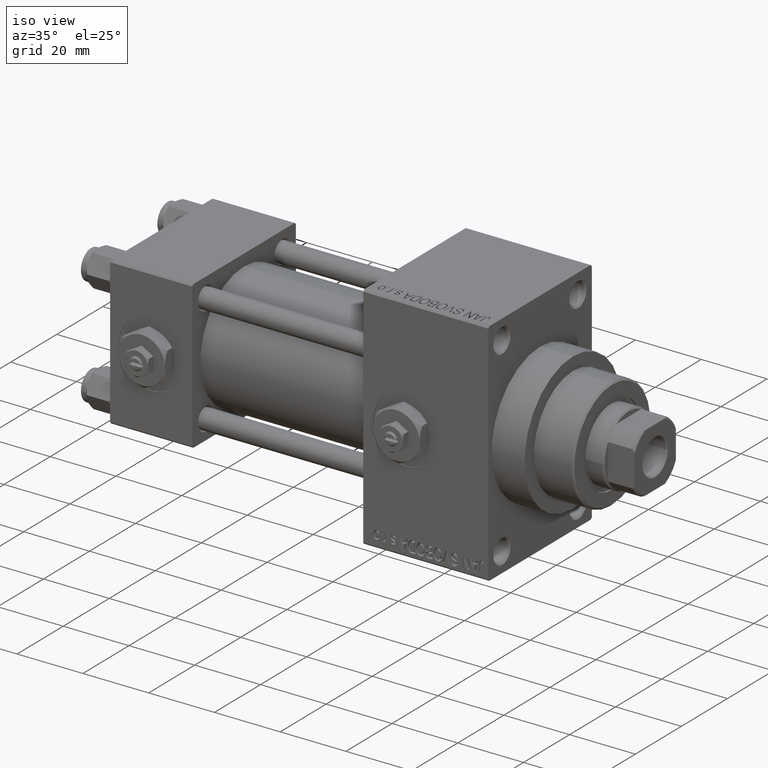
[diagram: clean part render]
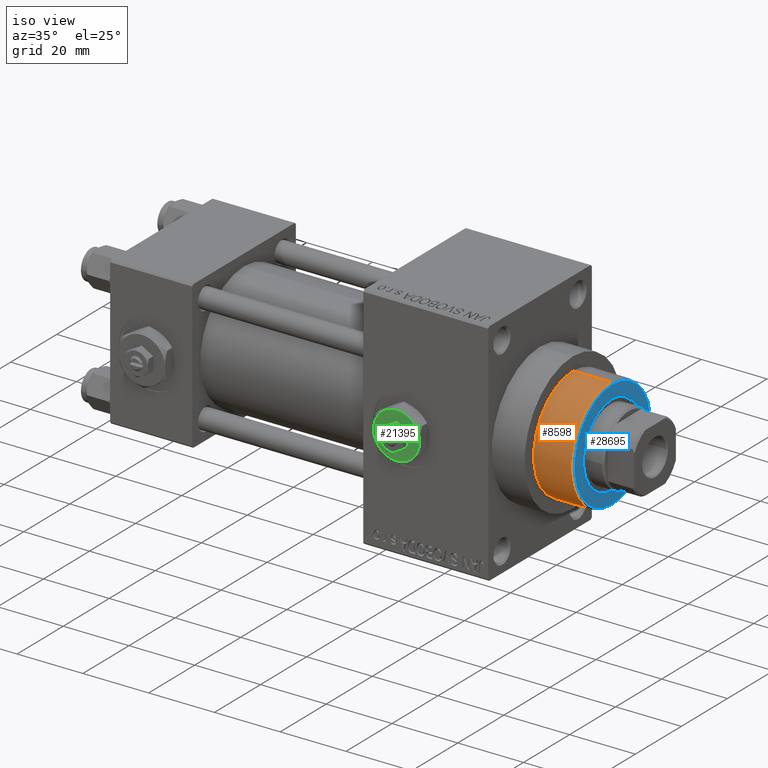
[diagram: same view with three faces highlighted in distinct colors, each labeled with its STEP entity id]
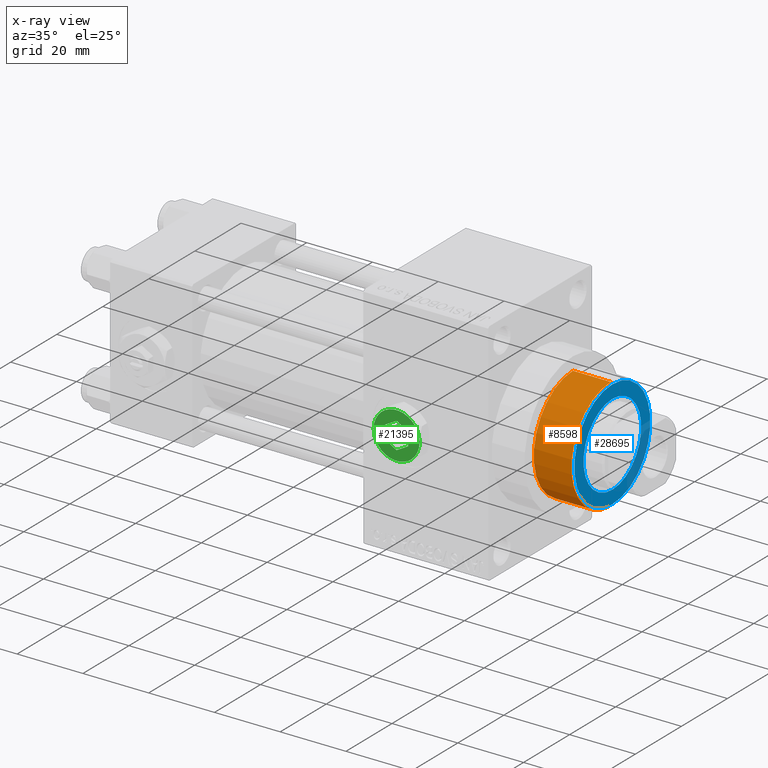
[diagram: x-ray of the same camera — body ghosted, the three highlighted faces saturated]
A machine part, iso view with three faces highlighted in distinct colors.
The next image is the same camera in x-ray (body ghosted, the three faces saturated) — at least one of them is partly hidden behind the body in this view.
Their STEP definitions:

[orange] entity #8598 — the highlighted cylindrical surface (partial cylindrical patch) has radius 17 mm, axis along (-1, 0, 0).
#325 = DIRECTION ( 'NONE',  ( 1.000000000000000000, 0.000000000000000000, 0.000000000000000000 ) ) ;
#334 = VERTEX_POINT ( 'NONE', #25398 ) ;
#996 = EDGE_CURVE ( 'NONE', #15104, #3579, #21728, .T. ) ;
#1653 = VERTEX_POINT ( 'NONE', #4842 ) ;
#2071 = DIRECTION ( 'NONE',  ( -0.000000000000000000, -0.000000000000000000, -1.000000000000000000 ) ) ;
#3477 = AXIS2_PLACEMENT_3D ( 'NONE', #22919, #38055, #325 ) ;
#3579 = VERTEX_POINT ( 'NONE', #31148 ) ;
#4842 = CARTESIAN_POINT ( 'NONE',  ( 17.00000000000000000, 2.081899558550500280E-15, 54.76000000000001222 ) ) ;
#5556 = FACE_OUTER_BOUND ( 'NONE', #6319, .T. ) ;
#6294 = DIRECTION ( 'NONE',  ( -1.000000000000000000, 0.000000000000000000, 0.000000000000000000 ) ) ;
#6319 = EDGE_LOOP ( 'NONE', ( #39094, #42210, #23900, #21152 ) ) ;
#6492 = VECTOR ( 'NONE', #44936, 1000.000000000000000 ) ;
#8598 = ADVANCED_FACE ( 'NONE', ( #5556 ), #20949, .T. ) ;
#11185 = CARTESIAN_POINT ( 'NONE',  ( 17.00000000000000000, 2.081899558550500280E-15, 55.26000000000000512 ) ) ;
#15104 = VERTEX_POINT ( 'NONE', #33435 ) ;
#20949 = CYLINDRICAL_SURFACE ( 'NONE', #28129, 17.00000000000000000 ) ;
#21152 = ORIENTED_EDGE ( 'NONE', *, *, #45999, .F. ) ;
#21286 = DIRECTION ( 'NONE',  ( -0.000000000000000000, -0.000000000000000000, -1.000000000000000000 ) ) ;
#21728 = CIRCLE ( 'NONE', #3477, 17.00000000000000000 ) ;
#22919 = CARTESIAN_POINT ( 'NONE',  ( 0.000000000000000000, 0.000000000000000000, 43.25999999999999801 ) ) ;
#23900 = ORIENTED_EDGE ( 'NONE', *, *, #996, .T. ) ;
#24979 = EDGE_CURVE ( 'NONE', #334, #1653, #34886, .T. ) ;
#25398 = CARTESIAN_POINT ( 'NONE',  ( -17.00000000000000000, 0.000000000000000000, 54.76000000000001222 ) ) ;
#26175 = AXIS2_PLACEMENT_3D ( 'NONE', #42388, #27491, #30736 ) ;
#27491 = DIRECTION ( 'NONE',  ( 0.000000000000000000, 0.000000000000000000, -1.000000000000000000 ) ) ;
#28129 = AXIS2_PLACEMENT_3D ( 'NONE', #39799, #2071, #6294 ) ;
#29712 = CARTESIAN_POINT ( 'NONE',  ( -17.00000000000000000, 0.000000000000000000, 55.26000000000000512 ) ) ;
#30736 = DIRECTION ( 'NONE',  ( 1.000000000000000000, 0.000000000000000000, 0.000000000000000000 ) ) ;
#31148 = CARTESIAN_POINT ( 'NONE',  ( -17.00000000000000000, 0.000000000000000000, 43.25999999999999801 ) ) ;
#32686 = VECTOR ( 'NONE', #21286, 1000.000000000000000 ) ;
#33435 = CARTESIAN_POINT ( 'NONE',  ( 17.00000000000000000, 2.081899558550500280E-15, 43.25999999999999801 ) ) ;
#34886 = CIRCLE ( 'NONE', #26175, 17.00000000000000000 ) ;
#37734 = LINE ( 'NONE', #11185, #6492 ) ;
#38055 = DIRECTION ( 'NONE',  ( 0.000000000000000000, 0.000000000000000000, 1.000000000000000000 ) ) ;
#39094 = ORIENTED_EDGE ( 'NONE', *, *, #24979, .T. ) ;
#39799 = CARTESIAN_POINT ( 'NONE',  ( 0.000000000000000000, 0.000000000000000000, 55.26000000000000512 ) ) ;
#42210 = ORIENTED_EDGE ( 'NONE', *, *, #49059, .T. ) ;
#42388 = CARTESIAN_POINT ( 'NONE',  ( 0.000000000000000000, 0.000000000000000000, 54.76000000000001222 ) ) ;
#44936 = DIRECTION ( 'NONE',  ( -0.000000000000000000, -0.000000000000000000, -1.000000000000000000 ) ) ;
#45999 = EDGE_CURVE ( 'NONE', #334, #3579, #47825, .T. ) ;
#47825 = LINE ( 'NONE', #29712, #32686 ) ;
#49059 = EDGE_CURVE ( 'NONE', #1653, #15104, #37734, .T. ) ;

[blue] entity #28695 — the highlighted planar face has unit normal (1, -0, -0).
#2701 = DIRECTION ( 'NONE',  ( 1.000000000000000000, 0.000000000000000000, -0.000000000000000000 ) ) ;
#2853 = CIRCLE ( 'NONE', #16356, 12.50000000000000000 ) ;
#2896 = EDGE_CURVE ( 'NONE', #24685, #6988, #2853, .T. ) ;
#3439 = PLANE ( 'NONE',  #23121 ) ;
#3912 = CIRCLE ( 'NONE', #25298, 16.50000000000001421 ) ;
#4381 = CIRCLE ( 'NONE', #43208, 16.50000000000001421 ) ;
#5198 = ORIENTED_EDGE ( 'NONE', *, *, #10107, .T. ) ;
#6913 = FACE_BOUND ( 'NONE', #44074, .T. ) ;
#6988 = VERTEX_POINT ( 'NONE', #8057 ) ;
#7241 = ORIENTED_EDGE ( 'NONE', *, *, #2896, .F. ) ;
#8057 = CARTESIAN_POINT ( 'NONE',  ( 12.50000000000000000, 0.000000000000000000, 55.26000000000000512 ) ) ;
#8405 = DIRECTION ( 'NONE',  ( 0.000000000000000000, 0.000000000000000000, 1.000000000000000000 ) ) ;
#8815 = DIRECTION ( 'NONE',  ( 0.000000000000000000, 0.000000000000000000, 1.000000000000000000 ) ) ;
#8896 = VERTEX_POINT ( 'NONE', #40609 ) ;
#9232 = CIRCLE ( 'NONE', #32225, 12.50000000000000000 ) ;
#10107 = EDGE_CURVE ( 'NONE', #8896, #11617, #4381, .T. ) ;
#10222 = CARTESIAN_POINT ( 'NONE',  ( -16.50000000000001421, 0.000000000000000000, 55.26000000000000512 ) ) ;
#11617 = VERTEX_POINT ( 'NONE', #10222 ) ;
#11646 = DIRECTION ( 'NONE',  ( 1.000000000000000000, 0.000000000000000000, 0.000000000000000000 ) ) ;
#12706 = EDGE_CURVE ( 'NONE', #6988, #24685, #9232, .T. ) ;
#15187 = DIRECTION ( 'NONE',  ( 0.000000000000000000, 0.000000000000000000, 1.000000000000000000 ) ) ;
#16356 = AXIS2_PLACEMENT_3D ( 'NONE', #44705, #15187, #22622 ) ;
#16658 = CARTESIAN_POINT ( 'NONE',  ( 0.000000000000000000, 0.000000000000000000, 55.26000000000000512 ) ) ;
#17500 = ORIENTED_EDGE ( 'NONE', *, *, #39723, .T. ) ;
#18591 = DIRECTION ( 'NONE',  ( 0.000000000000000000, 0.000000000000000000, 1.000000000000000000 ) ) ;
#20200 = ORIENTED_EDGE ( 'NONE', *, *, #12706, .F. ) ;
#20881 = DIRECTION ( 'NONE',  ( 1.000000000000000000, 0.000000000000000000, 0.000000000000000000 ) ) ;
#22622 = DIRECTION ( 'NONE',  ( 1.000000000000000000, 0.000000000000000000, 0.000000000000000000 ) ) ;
#23121 = AXIS2_PLACEMENT_3D ( 'NONE', #30006, #18591, #2701 ) ;
#23198 = EDGE_LOOP ( 'NONE', ( #17500, #5198 ) ) ;
#23467 = CARTESIAN_POINT ( 'NONE',  ( 0.000000000000000000, 0.000000000000000000, 55.26000000000000512 ) ) ;
#24685 = VERTEX_POINT ( 'NONE', #33527 ) ;
#25298 = AXIS2_PLACEMENT_3D ( 'NONE', #16658, #28319, #20881 ) ;
#28319 = DIRECTION ( 'NONE',  ( 0.000000000000000000, 0.000000000000000000, 1.000000000000000000 ) ) ;
#28695 = ADVANCED_FACE ( 'NONE', ( #6913, #48360 ), #3439, .T. ) ;
#30006 = CARTESIAN_POINT ( 'NONE',  ( 0.000000000000000000, 0.000000000000000000, 55.26000000000000512 ) ) ;
#32225 = AXIS2_PLACEMENT_3D ( 'NONE', #46133, #8405, #11646 ) ;
#33527 = CARTESIAN_POINT ( 'NONE',  ( -12.50000000000000000, 1.530808498934191521E-15, 55.26000000000000512 ) ) ;
#38606 = DIRECTION ( 'NONE',  ( 1.000000000000000000, 0.000000000000000000, 0.000000000000000000 ) ) ;
#39723 = EDGE_CURVE ( 'NONE', #11617, #8896, #3912, .T. ) ;
#40609 = CARTESIAN_POINT ( 'NONE',  ( 16.50000000000001421, 2.051283388571817281E-15, 55.26000000000000512 ) ) ;
#43208 = AXIS2_PLACEMENT_3D ( 'NONE', #23467, #8815, #38606 ) ;
#44074 = EDGE_LOOP ( 'NONE', ( #20200, #7241 ) ) ;
#44705 = CARTESIAN_POINT ( 'NONE',  ( 0.000000000000000000, 0.000000000000000000, 55.26000000000000512 ) ) ;
#46133 = CARTESIAN_POINT ( 'NONE',  ( 0.000000000000000000, 0.000000000000000000, 55.26000000000000512 ) ) ;
#48360 = FACE_OUTER_BOUND ( 'NONE', #23198, .T. ) ;

[green] entity #21395 — the highlighted planar face has unit normal (0, -1, -0).
#149 = CARTESIAN_POINT ( 'NONE',  ( -3.499999999999998668, -2.020725942163689837, 4.299999999999999822 ) ) ;
#1496 = AXIS2_PLACEMENT_3D ( 'NONE', #32405, #40089, #36605 ) ;
#1944 = EDGE_CURVE ( 'NONE', #37073, #5829, #8275, .T. ) ;
#2005 = EDGE_CURVE ( 'NONE', #27962, #6842, #47116, .T. ) ;
#2065 = ORIENTED_EDGE ( 'NONE', *, *, #39483, .F. ) ;
#2219 = CARTESIAN_POINT ( 'NONE',  ( -3.499999999999999112, 2.020725942163690725, 4.299999999999999822 ) ) ;
#3844 = DIRECTION ( 'NONE',  ( -3.219245568722483357E-16, 1.000000000000000000, 0.000000000000000000 ) ) ;
#4622 = CARTESIAN_POINT ( 'NONE',  ( -2.443687887572056883E-16, -4.041451884327378785, 4.299999999999999822 ) ) ;
#4926 = PLANE ( 'NONE',  #28439 ) ;
#5022 = CARTESIAN_POINT ( 'NONE',  ( 0.000000000000000000, 4.041451884327380562, 4.299999999999999822 ) ) ;
#5829 = VERTEX_POINT ( 'NONE', #2219 ) ;
#6010 = DIRECTION ( 'NONE',  ( 0.000000000000000000, 0.000000000000000000, 1.000000000000000000 ) ) ;
#6591 = DIRECTION ( 'NONE',  ( 0.000000000000000000, 0.000000000000000000, 1.000000000000000000 ) ) ;
#6842 = VERTEX_POINT ( 'NONE', #25197 ) ;
#8275 = LINE ( 'NONE', #5022, #9856 ) ;
#8494 = AXIS2_PLACEMENT_3D ( 'NONE', #12362, #12125, #27754 ) ;
#8606 = CARTESIAN_POINT ( 'NONE',  ( 3.499999999999998224, 2.020725942163691613, 4.299999999999999822 ) ) ;
#9264 = AXIS2_PLACEMENT_3D ( 'NONE', #35702, #43403, #40159 ) ;
#9856 = VECTOR ( 'NONE', #20183, 1000.000000000000227 ) ;
#11118 = CARTESIAN_POINT ( 'NONE',  ( 3.499999999999998224, 2.020725942163691613, 4.299999999999999822 ) ) ;
#11139 = VERTEX_POINT ( 'NONE', #42834 ) ;
#11686 = VERTEX_POINT ( 'NONE', #24885 ) ;
#12125 = DIRECTION ( 'NONE',  ( 0.000000000000000000, 0.000000000000000000, 1.000000000000000000 ) ) ;
#12269 = LINE ( 'NONE', #26444, #37195 ) ;
#12362 = CARTESIAN_POINT ( 'NONE',  ( 0.000000000000000000, 0.000000000000000000, 4.299999999999999822 ) ) ;
#12378 = CIRCLE ( 'NONE', #40118, 7.000000000000001776 ) ;
#13068 = CARTESIAN_POINT ( 'NONE',  ( -3.499999999999999112, 2.020725942163690725, 4.299999999999999822 ) ) ;
#13234 = VECTOR ( 'NONE', #15301, 1000.000000000000227 ) ;
#13448 = ORIENTED_EDGE ( 'NONE', *, *, #43110, .F. ) ;
#13800 = CARTESIAN_POINT ( 'NONE',  ( 0.000000000000000000, 0.000000000000000000, 4.299999999999999822 ) ) ;
#14567 = EDGE_CURVE ( 'NONE', #22800, #42660, #45725, .T. ) ;
#15301 = DIRECTION ( 'NONE',  ( 0.8660254037844385966, -0.4999999999999998890, 0.000000000000000000 ) ) ;
#15308 = ORIENTED_EDGE ( 'NONE', *, *, #1944, .F. ) ;
#15482 = EDGE_LOOP ( 'NONE', ( #22625, #20975, #33012, #27269, #48267, #28448 ) ) ;
#16065 = DIRECTION ( 'NONE',  ( -0.8660254037844387076, 0.4999999999999998335, 0.000000000000000000 ) ) ;
#16556 = CARTESIAN_POINT ( 'NONE',  ( -7.000000000000001776, -2.253471898105739040E-15, 4.299999999999999822 ) ) ;
#16566 = EDGE_CURVE ( 'NONE', #6842, #19864, #12378, .T. ) ;
#16966 = EDGE_CURVE ( 'NONE', #19864, #22800, #32258, .T. ) ;
#17082 = FACE_OUTER_BOUND ( 'NONE', #15482, .T. ) ;
#17734 = ORIENTED_EDGE ( 'NONE', *, *, #34509, .F. ) ;
#19024 = LINE ( 'NONE', #149, #13234 ) ;
#19085 = VECTOR ( 'NONE', #46266, 1000.000000000000114 ) ;
#19109 = EDGE_CURVE ( 'NONE', #20193, #37073, #34924, .T. ) ;
#19734 = LINE ( 'NONE', #45297, #19085 ) ;
#19864 = VERTEX_POINT ( 'NONE', #48410 ) ;
#20183 = DIRECTION ( 'NONE',  ( -0.8660254037844385966, -0.4999999999999998890, 0.000000000000000000 ) ) ;
#20193 = VERTEX_POINT ( 'NONE', #11118 ) ;
#20975 = ORIENTED_EDGE ( 'NONE', *, *, #14567, .T. ) ;
#21395 = ADVANCED_FACE ( 'NONE', ( #17082, #23789 ), #4926, .T. ) ;
#21729 = DIRECTION ( 'NONE',  ( 1.000000000000000000, 0.000000000000000000, 0.000000000000000000 ) ) ;
#22259 = EDGE_LOOP ( 'NONE', ( #15308, #30550, #2065, #13448, #17734, #23409 ) ) ;
#22519 = CARTESIAN_POINT ( 'NONE',  ( 0.000000000000000000, 4.041451884327380562, 4.299999999999999822 ) ) ;
#22625 = ORIENTED_EDGE ( 'NONE', *, *, #16966, .T. ) ;
#22800 = VERTEX_POINT ( 'NONE', #46152 ) ;
#23179 = EDGE_CURVE ( 'NONE', #42660, #37506, #27693, .T. ) ;
#23409 = ORIENTED_EDGE ( 'NONE', *, *, #43689, .F. ) ;
#23789 = FACE_BOUND ( 'NONE', #22259, .T. ) ;
#24885 = CARTESIAN_POINT ( 'NONE',  ( -3.499999999999998668, -2.020725942163689837, 4.299999999999999822 ) ) ;
#25197 = CARTESIAN_POINT ( 'NONE',  ( -3.500000000000000000, -6.062177826491073063, 4.299999999999999822 ) ) ;
#26363 = AXIS2_PLACEMENT_3D ( 'NONE', #13800, #6591, #21729 ) ;
#26369 = CARTESIAN_POINT ( 'NONE',  ( -3.500000000000000888, 6.062177826491073063, 4.299999999999999822 ) ) ;
#26444 = CARTESIAN_POINT ( 'NONE',  ( 3.499999999999999556, -2.020725942163690281, 4.299999999999999822 ) ) ;
#27269 = ORIENTED_EDGE ( 'NONE', *, *, #30200, .T. ) ;
#27693 = CIRCLE ( 'NONE', #1496, 7.000000000000001776 ) ;
#27754 = DIRECTION ( 'NONE',  ( 1.000000000000000000, 0.000000000000000000, 0.000000000000000000 ) ) ;
#27962 = VERTEX_POINT ( 'NONE', #16556 ) ;
#28207 = DIRECTION ( 'NONE',  ( 1.073081856240828196E-16, -1.000000000000000000, 0.000000000000000000 ) ) ;
#28439 = AXIS2_PLACEMENT_3D ( 'NONE', #28499, #46615, #35208 ) ;
#28448 = ORIENTED_EDGE ( 'NONE', *, *, #16566, .T. ) ;
#28499 = CARTESIAN_POINT ( 'NONE',  ( 0.000000000000000000, 0.000000000000000000, 4.299999999999999822 ) ) ;
#30200 = EDGE_CURVE ( 'NONE', #37506, #27962, #33470, .T. ) ;
#30550 = ORIENTED_EDGE ( 'NONE', *, *, #19109, .F. ) ;
#32258 = CIRCLE ( 'NONE', #9264, 7.000000000000001776 ) ;
#32405 = CARTESIAN_POINT ( 'NONE',  ( 0.000000000000000000, 0.000000000000000000, 4.299999999999999822 ) ) ;
#33012 = ORIENTED_EDGE ( 'NONE', *, *, #23179, .T. ) ;
#33470 = CIRCLE ( 'NONE', #26363, 7.000000000000001776 ) ;
#34073 = CARTESIAN_POINT ( 'NONE',  ( 0.000000000000000000, 0.000000000000000000, 4.299999999999999822 ) ) ;
#34509 = EDGE_CURVE ( 'NONE', #11686, #38255, #19024, .T. ) ;
#34924 = LINE ( 'NONE', #8606, #41048 ) ;
#35208 = DIRECTION ( 'NONE',  ( 1.000000000000000000, 0.000000000000000000, -0.000000000000000000 ) ) ;
#35702 = CARTESIAN_POINT ( 'NONE',  ( 0.000000000000000000, 0.000000000000000000, 4.299999999999999822 ) ) ;
#36030 = DIRECTION ( 'NONE',  ( 1.000000000000000000, 0.000000000000000000, 0.000000000000000000 ) ) ;
#36605 = DIRECTION ( 'NONE',  ( 1.000000000000000000, 0.000000000000000000, 0.000000000000000000 ) ) ;
#37073 = VERTEX_POINT ( 'NONE', #22519 ) ;
#37195 = VECTOR ( 'NONE', #3844, 1000.000000000000000 ) ;
#37506 = VERTEX_POINT ( 'NONE', #26369 ) ;
#37598 = AXIS2_PLACEMENT_3D ( 'NONE', #39764, #6010, #36030 ) ;
#38255 = VERTEX_POINT ( 'NONE', #4622 ) ;
#39483 = EDGE_CURVE ( 'NONE', #11139, #20193, #12269, .T. ) ;
#39764 = CARTESIAN_POINT ( 'NONE',  ( 0.000000000000000000, 0.000000000000000000, 4.299999999999999822 ) ) ;
#40089 = DIRECTION ( 'NONE',  ( 0.000000000000000000, 0.000000000000000000, 1.000000000000000000 ) ) ;
#40118 = AXIS2_PLACEMENT_3D ( 'NONE', #34073, #44495, #48957 ) ;
#40159 = DIRECTION ( 'NONE',  ( 1.000000000000000000, 0.000000000000000000, 0.000000000000000000 ) ) ;
#41048 = VECTOR ( 'NONE', #16065, 1000.000000000000114 ) ;
#42660 = VERTEX_POINT ( 'NONE', #42952 ) ;
#42834 = CARTESIAN_POINT ( 'NONE',  ( 3.500000000000000000, -2.020725942163690281, 4.299999999999999822 ) ) ;
#42952 = CARTESIAN_POINT ( 'NONE',  ( 3.500000000000000444, 6.062177826491073063, 4.299999999999999822 ) ) ;
#43110 = EDGE_CURVE ( 'NONE', #38255, #11139, #19734, .T. ) ;
#43403 = DIRECTION ( 'NONE',  ( 0.000000000000000000, 0.000000000000000000, 1.000000000000000000 ) ) ;
#43689 = EDGE_CURVE ( 'NONE', #5829, #11686, #43832, .T. ) ;
#43832 = LINE ( 'NONE', #13068, #47657 ) ;
#44495 = DIRECTION ( 'NONE',  ( 0.000000000000000000, 0.000000000000000000, 1.000000000000000000 ) ) ;
#45297 = CARTESIAN_POINT ( 'NONE',  ( -2.443687887572056883E-16, -4.041451884327378785, 4.299999999999999822 ) ) ;
#45725 = CIRCLE ( 'NONE', #8494, 7.000000000000001776 ) ;
#46152 = CARTESIAN_POINT ( 'NONE',  ( 6.999999999999994671, 3.004629197474313724E-15, 4.299999999999999822 ) ) ;
#46266 = DIRECTION ( 'NONE',  ( 0.8660254037844388186, 0.4999999999999996669, 0.000000000000000000 ) ) ;
#46615 = DIRECTION ( 'NONE',  ( 0.000000000000000000, 0.000000000000000000, 1.000000000000000000 ) ) ;
#47116 = CIRCLE ( 'NONE', #37598, 7.000000000000001776 ) ;
#47657 = VECTOR ( 'NONE', #28207, 1000.000000000000000 ) ;
#48267 = ORIENTED_EDGE ( 'NONE', *, *, #2005, .T. ) ;
#48410 = CARTESIAN_POINT ( 'NONE',  ( 3.500000000000000888, -6.062177826491073951, 4.299999999999999822 ) ) ;
#48957 = DIRECTION ( 'NONE',  ( 1.000000000000000000, 0.000000000000000000, 0.000000000000000000 ) ) ;